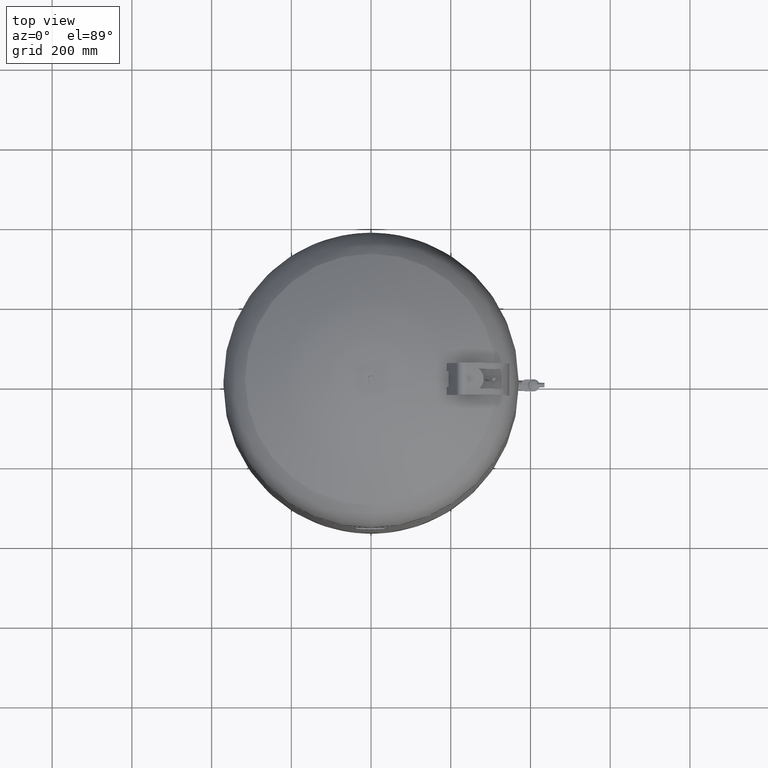
[diagram: clean part render]
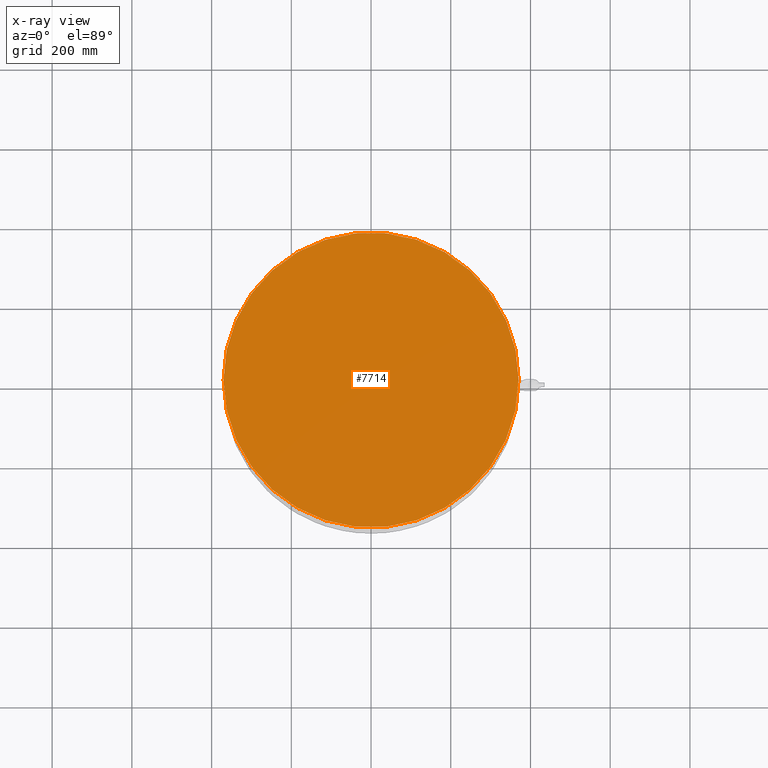
[diagram: x-ray — body ghosted, one internal face saturated and labeled with its STEP entity id]
A machine part, top view, then the same camera in x-ray: the body is ghosted and one INTERNAL B-rep face — a face not visible from any outside direction — is saturated and labeled: STEP entity #7714.
In plain terms, the highlighted planar face has unit normal (0, 0, 1).
Its self-contained STEP definition (entity closure, byte-faithful):
#7574=CARTESIAN_POINT('',(370.000000000000060,0.0,1255.0));
#7575=VERTEX_POINT('',#7574);
#7584=CARTESIAN_POINT('',(-370.000000000000060,-4.531044E-014,1255.0));
#7585=VERTEX_POINT('',#7584);
#7586=CARTESIAN_POINT('',(1.668796E-014,0.0,1255.0));
#7587=DIRECTION('',(0.0,0.0,1.0));
#7588=DIRECTION('',(1.0,0.0,0.0));
#7589=AXIS2_PLACEMENT_3D('',#7586,#7587,#7588);
#7590=CIRCLE('',#7589,370.000000000000060);
#7591=EDGE_CURVE('',#7585,#7575,#7590,.T.);
#7695=CARTESIAN_POINT('',(1.668796E-014,0.0,1255.0));
#7696=DIRECTION('',(0.0,0.0,1.0));
#7697=DIRECTION('',(1.0,0.0,0.0));
#7698=AXIS2_PLACEMENT_3D('',#7695,#7696,#7697);
#7699=CIRCLE('',#7698,370.000000000000060);
#7700=EDGE_CURVE('',#7575,#7585,#7699,.T.);
#7705=CARTESIAN_POINT('',(1.668796E-014,0.0,1255.0));
#7706=DIRECTION('',(0.0,0.0,1.0));
#7707=DIRECTION('',(1.0,0.0,0.0));
#7708=AXIS2_PLACEMENT_3D('',#7705,#7706,#7707);
#7709=PLANE('',#7708);
#7710=ORIENTED_EDGE('',*,*,#7700,.T.);
#7711=ORIENTED_EDGE('',*,*,#7591,.T.);
#7712=EDGE_LOOP('',(#7710,#7711));
#7713=FACE_OUTER_BOUND('',#7712,.T.);
#7714=ADVANCED_FACE('',(#7713),#7709,.T.);